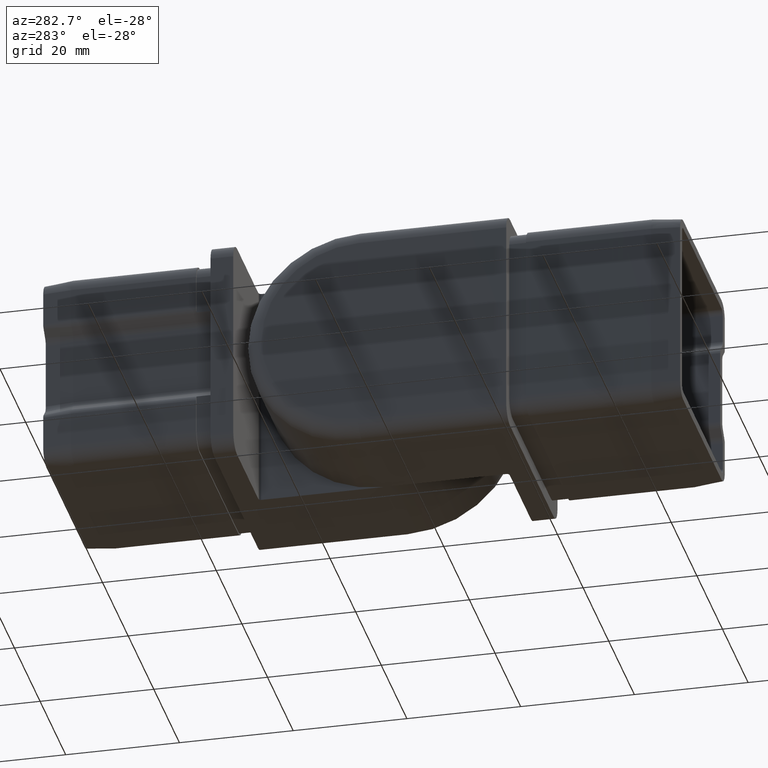
[diagram: clean part render]
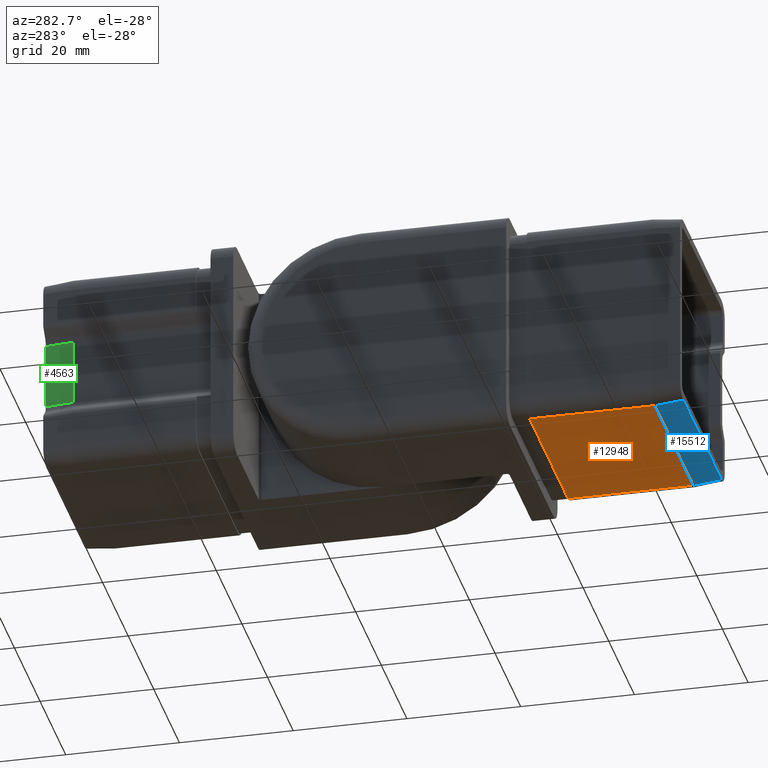
[diagram: same view with three faces highlighted in distinct colors, each labeled with its STEP entity id]
A machine part, auxiliary view with three faces highlighted in distinct colors.
Their STEP definitions:

[orange] entity #12948 — the highlighted planar face has unit normal (-0, 0, 1).
#127 = VERTEX_POINT ( 'NONE', #2105 ) ;
#237 = DIRECTION ( 'NONE',  ( 1.000000000000000000, 0.0000000000000000000, 1.164243943608595200E-016 ) ) ;
#649 = DIRECTION ( 'NONE',  ( -0.0000000000000000000, 1.000000000000000000, -0.0000000000000000000 ) ) ;
#703 = VERTEX_POINT ( 'NONE', #15348 ) ;
#947 = EDGE_LOOP ( 'NONE', ( #13348, #2638, #14060, #15818 ) ) ;
#1611 = EDGE_CURVE ( 'NONE', #127, #11618, #14345, .T. ) ;
#2105 = CARTESIAN_POINT ( 'NONE',  ( 14.90000000000000900, -3.000000000000000000, -17.89999999999998400 ) ) ;
#2638 = ORIENTED_EDGE ( 'NONE', *, *, #10648, .T. ) ;
#3183 = CARTESIAN_POINT ( 'NONE',  ( 14.90000000000000900, -3.000000000000000000, -17.89999999999998400 ) ) ;
#3429 = CARTESIAN_POINT ( 'NONE',  ( -14.89999999999999500, -3.000000000000000000, -17.89999999999998800 ) ) ;
#4260 = AXIS2_PLACEMENT_3D ( 'NONE', #15479, #7353, #237 ) ;
#4573 = CARTESIAN_POINT ( 'NONE',  ( -14.89999999999999700, -30.00000000000000000, -17.89999999999999900 ) ) ;
#5223 = LINE ( 'NONE', #4573, #5634 ) ;
#5236 = VERTEX_POINT ( 'NONE', #16559 ) ;
#5418 = VECTOR ( 'NONE', #6329, 1000.000000000000000 ) ;
#5634 = VECTOR ( 'NONE', #10105, 1000.000000000000000 ) ;
#6215 = VECTOR ( 'NONE', #649, 1000.000000000000000 ) ;
#6329 = DIRECTION ( 'NONE',  ( -1.000000000000000000, 0.0000000000000000000, -1.164243943608595200E-016 ) ) ;
#7285 = LINE ( 'NONE', #11764, #6215 ) ;
#7353 = DIRECTION ( 'NONE',  ( -1.164243943608595200E-016, 0.0000000000000000000, 1.000000000000000000 ) ) ;
#9604 = LINE ( 'NONE', #14719, #5418 ) ;
#9709 = VECTOR ( 'NONE', #17444, 1000.000000000000000 ) ;
#10105 = DIRECTION ( 'NONE',  ( -0.0000000000000000000, 1.000000000000000000, -0.0000000000000000000 ) ) ;
#10562 = EDGE_CURVE ( 'NONE', #5236, #11618, #5223, .T. ) ;
#10648 = EDGE_CURVE ( 'NONE', #703, #5236, #9604, .T. ) ;
#11618 = VERTEX_POINT ( 'NONE', #3429 ) ;
#11764 = CARTESIAN_POINT ( 'NONE',  ( 14.90000000000000700, -30.00000000000000000, -17.89999999999999500 ) ) ;
#12948 = ADVANCED_FACE ( 'NONE', ( #16372 ), #16964, .F. ) ;
#13348 = ORIENTED_EDGE ( 'NONE', *, *, #13783, .F. ) ;
#13783 = EDGE_CURVE ( 'NONE', #703, #127, #7285, .T. ) ;
#14060 = ORIENTED_EDGE ( 'NONE', *, *, #10562, .T. ) ;
#14345 = LINE ( 'NONE', #3183, #9709 ) ;
#14719 = CARTESIAN_POINT ( 'NONE',  ( 14.90000000000000900, -25.00000000000000000, -17.89999999999999100 ) ) ;
#15348 = CARTESIAN_POINT ( 'NONE',  ( 14.90000000000000900, -25.00000000000000000, -17.89999999999999100 ) ) ;
#15479 = CARTESIAN_POINT ( 'NONE',  ( 2.083996659059385300E-015, -30.00000000000000000, -17.89999999999999900 ) ) ;
#15818 = ORIENTED_EDGE ( 'NONE', *, *, #1611, .F. ) ;
#16372 = FACE_OUTER_BOUND ( 'NONE', #947, .T. ) ;
#16559 = CARTESIAN_POINT ( 'NONE',  ( -14.89999999999999500, -25.00000000000000000, -17.89999999999999500 ) ) ;
#16964 = PLANE ( 'NONE',  #4260 ) ;
#17444 = DIRECTION ( 'NONE',  ( -1.000000000000000000, 0.0000000000000000000, -1.164243943608595200E-016 ) ) ;

[blue] entity #15512 — the highlighted planar face has unit normal (-0, 0.0995, 0.995).
#499 = ORIENTED_EDGE ( 'NONE', *, *, #16191, .T. ) ;
#703 = VERTEX_POINT ( 'NONE', #15348 ) ;
#940 = VERTEX_POINT ( 'NONE', #1614 ) ;
#1045 = DIRECTION ( 'NONE',  ( -2.905125927406221800E-008, 0.9950371902099891500, -0.09950371902099410000 ) ) ;
#1614 = CARTESIAN_POINT ( 'NONE',  ( -14.89999985401922600, -30.00000000000000400, -17.40000000000002300 ) ) ;
#1952 = LINE ( 'NONE', #10171, #15317 ) ;
#2518 = EDGE_LOOP ( 'NONE', ( #12893, #5172, #499, #14493 ) ) ;
#2551 = CARTESIAN_POINT ( 'NONE',  ( 14.90000014598077800, -30.00000000000000400, -17.40000000000002000 ) ) ;
#4283 = DIRECTION ( 'NONE',  ( -1.158466022367294500E-016, 0.09950371902099416900, 0.9950371902099897100 ) ) ;
#5172 = ORIENTED_EDGE ( 'NONE', *, *, #7782, .T. ) ;
#5236 = VERTEX_POINT ( 'NONE', #16559 ) ;
#5418 = VECTOR ( 'NONE', #6329, 1000.000000000000000 ) ;
#5627 = VERTEX_POINT ( 'NONE', #2551 ) ;
#5776 = CARTESIAN_POINT ( 'NONE',  ( 14.90000014598077800, -30.00000000000000400, -17.40000000000002000 ) ) ;
#6329 = DIRECTION ( 'NONE',  ( -1.000000000000000000, 0.0000000000000000000, -1.164243943608595200E-016 ) ) ;
#7782 = EDGE_CURVE ( 'NONE', #5627, #940, #17176, .T. ) ;
#8718 = CARTESIAN_POINT ( 'NONE',  ( 14.90000014598077800, -30.00000000000000400, -17.40000000000002000 ) ) ;
#9604 = LINE ( 'NONE', #14719, #5418 ) ;
#10144 = DIRECTION ( 'NONE',  ( 0.0000000000000000000, -0.9950371902099896000, 0.09950371902099415500 ) ) ;
#10171 = CARTESIAN_POINT ( 'NONE',  ( 14.90000014598077800, -30.00000000000000400, -17.40000000000002000 ) ) ;
#10593 = EDGE_CURVE ( 'NONE', #5627, #703, #1952, .T. ) ;
#10648 = EDGE_CURVE ( 'NONE', #703, #5236, #9604, .T. ) ;
#11570 = DIRECTION ( 'NONE',  ( -2.905125927406221800E-008, 0.9950371902099891500, -0.09950371902099410000 ) ) ;
#12757 = PLANE ( 'NONE',  #16320 ) ;
#12893 = ORIENTED_EDGE ( 'NONE', *, *, #10593, .F. ) ;
#13428 = VECTOR ( 'NONE', #17239, 1000.000000000000000 ) ;
#13433 = FACE_OUTER_BOUND ( 'NONE', #2518, .T. ) ;
#14493 = ORIENTED_EDGE ( 'NONE', *, *, #10648, .F. ) ;
#14719 = CARTESIAN_POINT ( 'NONE',  ( 14.90000000000000900, -25.00000000000000000, -17.89999999999999100 ) ) ;
#14761 = LINE ( 'NONE', #17918, #15611 ) ;
#15317 = VECTOR ( 'NONE', #11570, 1000.000000000000100 ) ;
#15348 = CARTESIAN_POINT ( 'NONE',  ( 14.90000000000000900, -25.00000000000000000, -17.89999999999999100 ) ) ;
#15512 = ADVANCED_FACE ( 'NONE', ( #13433 ), #12757, .F. ) ;
#15611 = VECTOR ( 'NONE', #1045, 1000.000000000000100 ) ;
#16191 = EDGE_CURVE ( 'NONE', #940, #5236, #14761, .T. ) ;
#16320 = AXIS2_PLACEMENT_3D ( 'NONE', #8718, #4283, #10144 ) ;
#16559 = CARTESIAN_POINT ( 'NONE',  ( -14.89999999999999500, -25.00000000000000000, -17.89999999999999500 ) ) ;
#17176 = LINE ( 'NONE', #5776, #13428 ) ;
#17239 = DIRECTION ( 'NONE',  ( -1.000000000000000000, 0.0000000000000000000, -1.164243943608595200E-016 ) ) ;
#17918 = CARTESIAN_POINT ( 'NONE',  ( -14.89999985401922600, -30.00000000000000400, -17.40000000000002300 ) ) ;

[green] entity #4563 — the highlighted planar face has unit normal (0.995, -0.0995, 0).
#68 = VERTEX_POINT ( 'NONE', #3316 ) ;
#765 = EDGE_CURVE ( 'NONE', #1330, #9094, #13473, .T. ) ;
#1009 = CARTESIAN_POINT ( 'NONE',  ( 15.39999999999996700, -30.00000000000000000, 5.831384563910250000 ) ) ;
#1061 = DIRECTION ( 'NONE',  ( -1.487402766402319900E-015, 0.0000000000000000000, -1.000000000000000000 ) ) ;
#1295 = ORIENTED_EDGE ( 'NONE', *, *, #7614, .F. ) ;
#1330 = VERTEX_POINT ( 'NONE', #12300 ) ;
#1368 = VECTOR ( 'NONE', #1495, 1000.000000000000000 ) ;
#1495 = DIRECTION ( 'NONE',  ( 0.09950371902099756900, 0.9950371902099890400, -2.039465876735313500E-008 ) ) ;
#1803 = LINE ( 'NONE', #2774, #1368 ) ;
#1816 = CARTESIAN_POINT ( 'NONE',  ( 15.39999999999996700, -30.00000000000000000, 5.831384563910250000 ) ) ;
#2774 = CARTESIAN_POINT ( 'NONE',  ( 15.39999999999996700, -30.00000000000000000, 5.831384563910250000 ) ) ;
#3316 = CARTESIAN_POINT ( 'NONE',  ( 15.89999999999999300, -24.99999999999988300, 5.831384461428360300 ) ) ;
#3535 = EDGE_LOOP ( 'NONE', ( #1295, #6918, #4880, #5913 ) ) ;
#4231 = DIRECTION ( 'NONE',  ( -1.487402766402319900E-015, 0.0000000000000000000, -1.000000000000000000 ) ) ;
#4343 = DIRECTION ( 'NONE',  ( 0.09950371902099756900, 0.9950371902099890400, -2.039465876735313500E-008 ) ) ;
#4483 = VERTEX_POINT ( 'NONE', #1816 ) ;
#4563 = ADVANCED_FACE ( 'NONE', ( #14640 ), #4999, .F. ) ;
#4880 = ORIENTED_EDGE ( 'NONE', *, *, #765, .T. ) ;
#4999 = PLANE ( 'NONE',  #7492 ) ;
#5913 = ORIENTED_EDGE ( 'NONE', *, *, #6518, .F. ) ;
#6195 = VECTOR ( 'NONE', #1061, 1000.000000000000000 ) ;
#6518 = EDGE_CURVE ( 'NONE', #68, #9094, #14337, .T. ) ;
#6588 = EDGE_CURVE ( 'NONE', #4483, #1330, #10611, .T. ) ;
#6840 = VECTOR ( 'NONE', #4343, 1000.000000000000000 ) ;
#6918 = ORIENTED_EDGE ( 'NONE', *, *, #6588, .T. ) ;
#7026 = CARTESIAN_POINT ( 'NONE',  ( 15.39999999999994900, -30.00000000000000000, -5.831384358946458200 ) ) ;
#7492 = AXIS2_PLACEMENT_3D ( 'NONE', #17356, #10479, #14596 ) ;
#7614 = EDGE_CURVE ( 'NONE', #4483, #68, #1803, .T. ) ;
#9094 = VERTEX_POINT ( 'NONE', #12171 ) ;
#10479 = DIRECTION ( 'NONE',  ( -0.9950371902099892600, 0.09950371902099758300, 1.480021069391529400E-015 ) ) ;
#10611 = LINE ( 'NONE', #1009, #6195 ) ;
#12171 = CARTESIAN_POINT ( 'NONE',  ( 15.89999999999994500, -24.99999999999999300, -5.831384461428342500 ) ) ;
#12300 = CARTESIAN_POINT ( 'NONE',  ( 15.39999999999994900, -30.00000000000000000, -5.831384358946458200 ) ) ;
#12643 = CARTESIAN_POINT ( 'NONE',  ( 15.89999999999996300, -24.99999999999999300, 5.831384461428365600 ) ) ;
#13448 = VECTOR ( 'NONE', #4231, 1000.000000000000000 ) ;
#13473 = LINE ( 'NONE', #7026, #6840 ) ;
#14337 = LINE ( 'NONE', #12643, #13448 ) ;
#14596 = DIRECTION ( 'NONE',  ( -0.09950371902099758300, -0.9950371902099892600, 0.0000000000000000000 ) ) ;
#14640 = FACE_OUTER_BOUND ( 'NONE', #3535, .T. ) ;
#17356 = CARTESIAN_POINT ( 'NONE',  ( 15.39999999999996700, -30.00000000000000000, 5.831384563910250000 ) ) ;